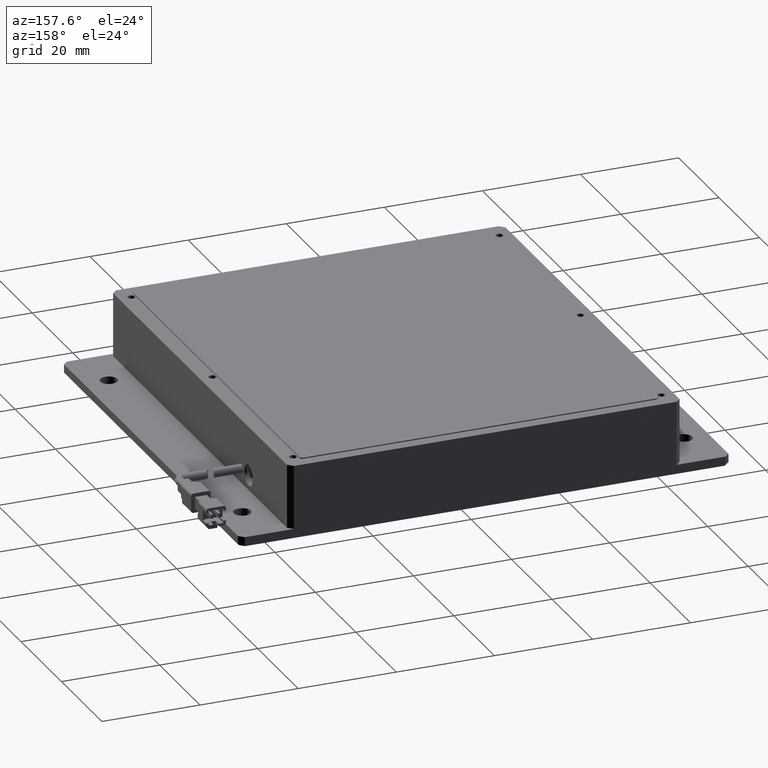
[diagram: clean part render]
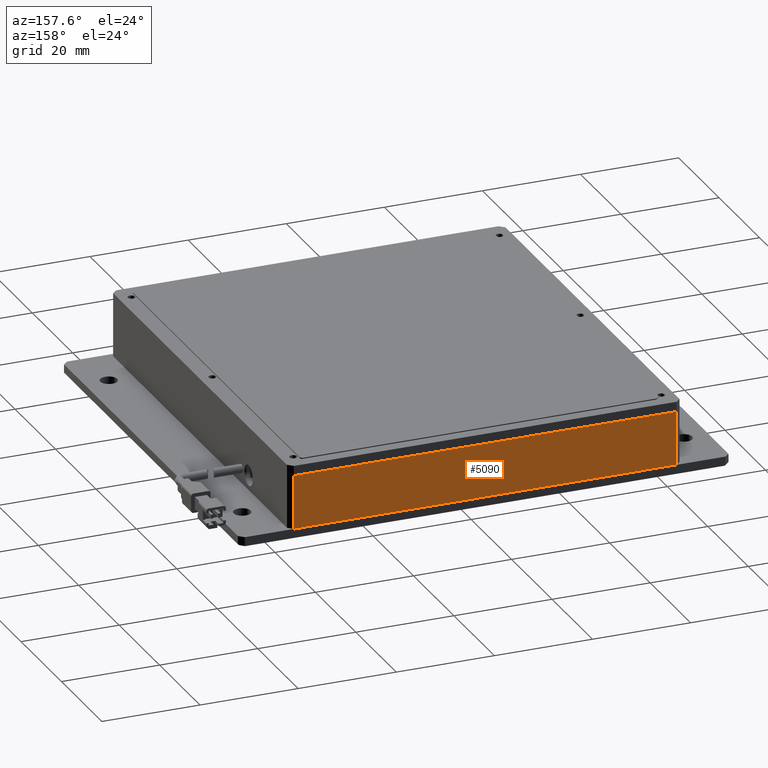
[diagram: same view with one face highlighted and labeled with its STEP entity id]
A machine part, auxiliary view. The second image highlights one B-rep face of the part: STEP entity #5090.
In plain terms, the highlighted planar face has unit normal (0, -1, 0).
Its self-contained STEP definition (entity closure, byte-faithful):
#15 = DIRECTION ( 'NONE',  ( 1.000000000000000000, 0.0000000000000000000, 0.0000000000000000000 ) ) ;
#92 = LINE ( 'NONE', #15072, #3356 ) ;
#548 = LINE ( 'NONE', #14040, #14700 ) ;
#2699 = VECTOR ( 'NONE', #7802, 1000.000000000000000 ) ;
#3356 = VECTOR ( 'NONE', #15, 1000.000000000000000 ) ;
#3418 = EDGE_CURVE ( 'NONE', #17541, #4959, #10419, .T. ) ;
#3597 = ORIENTED_EDGE ( 'NONE', *, *, #3418, .F. ) ;
#3852 = VERTEX_POINT ( 'NONE', #5752 ) ;
#4656 = EDGE_LOOP ( 'NONE', ( #3597, #11407, #5345, #16887 ) ) ;
#4959 = VERTEX_POINT ( 'NONE', #12711 ) ;
#5090 = ADVANCED_FACE ( 'NONE', ( #13536 ), #14523, .F. ) ;
#5345 = ORIENTED_EDGE ( 'NONE', *, *, #11312, .F. ) ;
#5365 = CARTESIAN_POINT ( 'NONE',  ( -22.94768995799924800, 39.79992363497522200, 10.99999999999545100 ) ) ;
#5752 = CARTESIAN_POINT ( 'NONE',  ( 56.05231004200073400, 39.79992363497522200, 10.99999999999545100 ) ) ;
#6688 = DIRECTION ( 'NONE',  ( 1.000000000000000000, -0.0000000000000000000, 0.0000000000000000000 ) ) ;
#7223 = EDGE_CURVE ( 'NONE', #17541, #3852, #15943, .T. ) ;
#7802 = DIRECTION ( 'NONE',  ( 0.0000000000000000000, -0.0000000000000000000, -1.000000000000000000 ) ) ;
#9741 = CARTESIAN_POINT ( 'NONE',  ( -21.94768995799926300, 39.79992363497522200, 10.99999999999545100 ) ) ;
#9989 = DIRECTION ( 'NONE',  ( -0.0000000000000000000, 0.0000000000000000000, 1.000000000000000000 ) ) ;
#10419 = LINE ( 'NONE', #14926, #2699 ) ;
#10468 = AXIS2_PLACEMENT_3D ( 'NONE', #14217, #17183, #14103 ) ;
#11312 = EDGE_CURVE ( 'NONE', #11739, #3852, #548, .T. ) ;
#11407 = ORIENTED_EDGE ( 'NONE', *, *, #7223, .T. ) ;
#11739 = VERTEX_POINT ( 'NONE', #16253 ) ;
#12711 = CARTESIAN_POINT ( 'NONE',  ( -21.94768995799926300, 39.79992363497522200, -4.550179677487165000E-012 ) ) ;
#13536 = FACE_OUTER_BOUND ( 'NONE', #4656, .T. ) ;
#14040 = CARTESIAN_POINT ( 'NONE',  ( 56.05231004200076200, 39.79992363497522200, 10.99999999999545100 ) ) ;
#14103 = DIRECTION ( 'NONE',  ( 0.0000000000000000000, -0.0000000000000000000, -1.000000000000000000 ) ) ;
#14217 = CARTESIAN_POINT ( 'NONE',  ( -22.94768995799924800, 39.79992363497522200, 10.99999999999545100 ) ) ;
#14523 = PLANE ( 'NONE',  #10468 ) ;
#14700 = VECTOR ( 'NONE', #9989, 1000.000000000000000 ) ;
#14926 = CARTESIAN_POINT ( 'NONE',  ( -21.94768995799926300, 39.79992363497522200, 10.99999999999545100 ) ) ;
#15072 = CARTESIAN_POINT ( 'NONE',  ( -22.94768995799924800, 39.79992363497522200, -4.547577592273199800E-012 ) ) ;
#15509 = VECTOR ( 'NONE', #6688, 1000.000000000000000 ) ;
#15943 = LINE ( 'NONE', #5365, #15509 ) ;
#16253 = CARTESIAN_POINT ( 'NONE',  ( 56.05231004200076200, 39.79992363497522200, -4.548878634880182400E-012 ) ) ;
#16797 = EDGE_CURVE ( 'NONE', #4959, #11739, #92, .T. ) ;
#16887 = ORIENTED_EDGE ( 'NONE', *, *, #16797, .F. ) ;
#17183 = DIRECTION ( 'NONE',  ( 0.0000000000000000000, -1.000000000000000000, 0.0000000000000000000 ) ) ;
#17541 = VERTEX_POINT ( 'NONE', #9741 ) ;